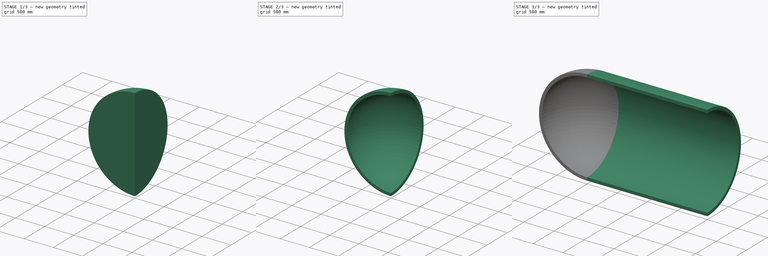
[diagram: build sequence overview — one tinted view per stage of 3, left to right]
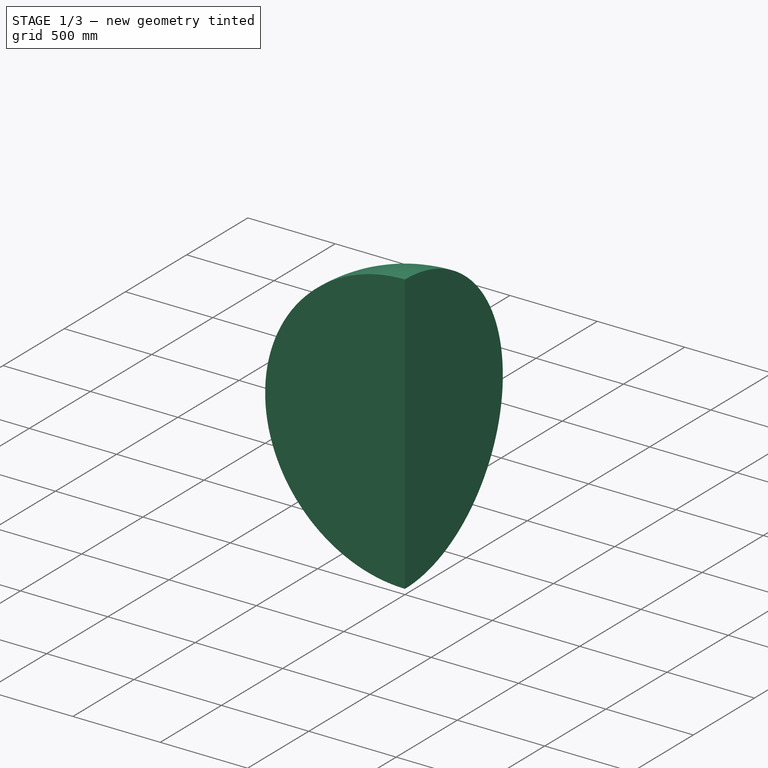
[diagram: stage 1 of 3 — iso view after this stage's code; geometry added in this stage tinted green]
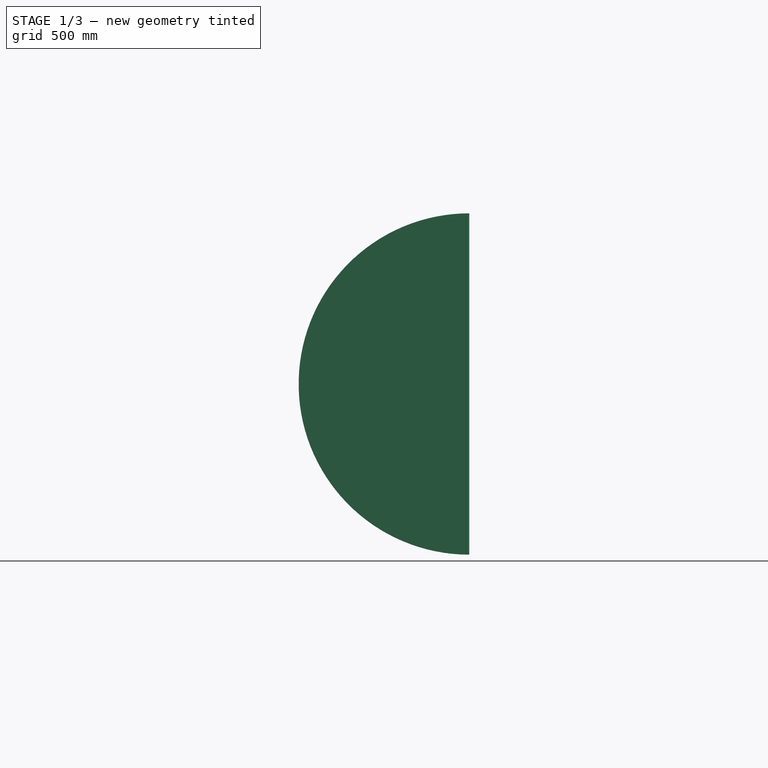
[diagram: stage 1 of 3 — front view after this stage's code; geometry added in this stage tinted green]
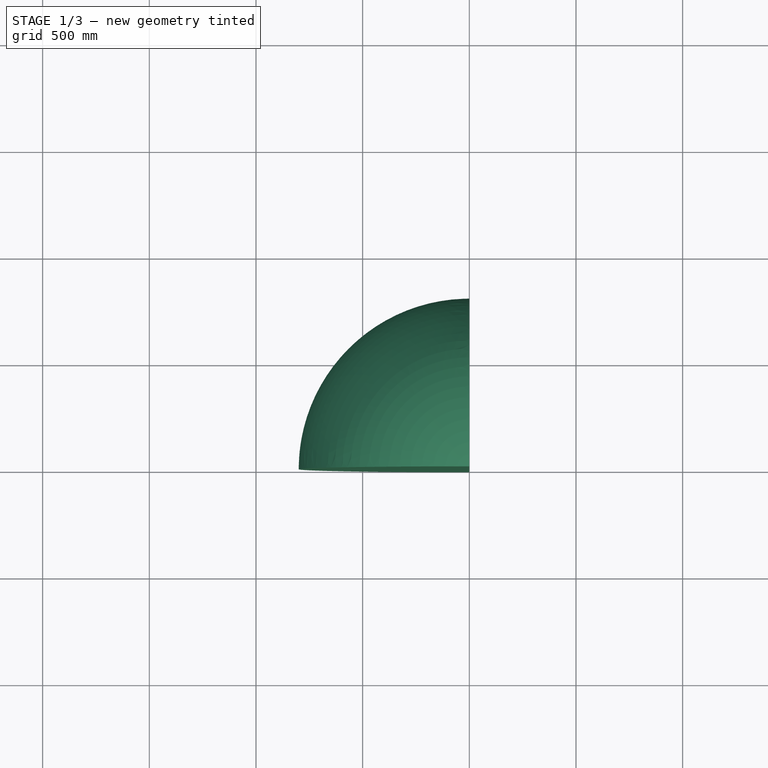
[diagram: stage 1 of 3 — top view after this stage's code; geometry added in this stage tinted green]
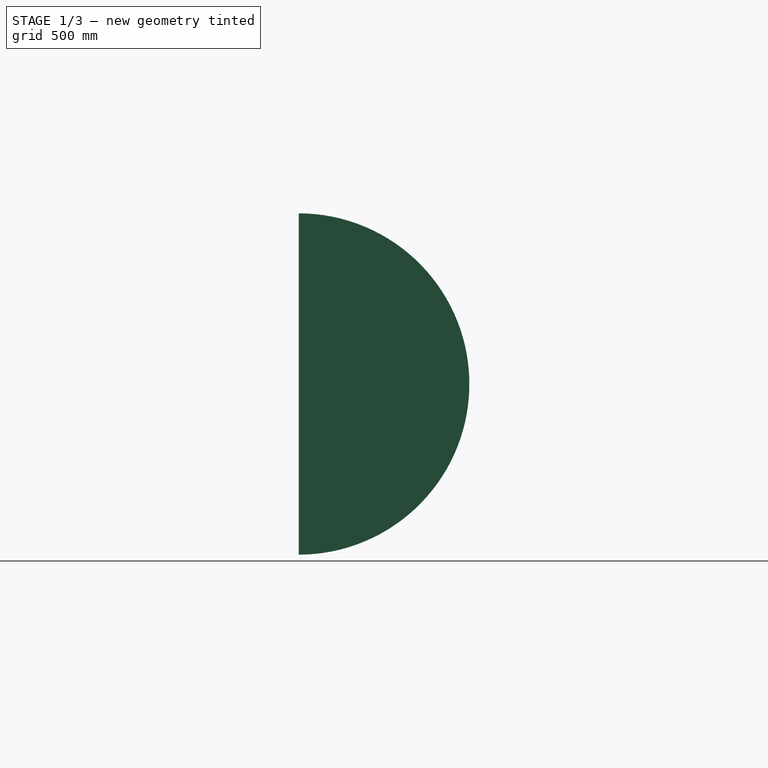
[diagram: stage 1 of 3 — right view after this stage's code; geometry added in this stage tinted green]
FCSTD DOCUMENT  (FreeCAD 0.16R6704 (Git))
Label: proj2-half-celindar
License: All rights reserved
LicenseURL: http://en.wikipedia.org/wiki/All_rights_reserved
objects: Sketcher::SketchObject×2, Part::Sphere×2, PartDesign::Pad×1, PartDesign::Pocket×1, Part::Cut×1
note: 9 computed .brp shape members not serialized (recipe doc carries the construction recipe); baked Part::Feature solids carry a one-line shape summary decoded from their .brp

FEATURE [Part::Sphere] Sphere
  Angle1 = -90
  Angle2 = 90
  Angle3 = 90
  Placement = pos=(0,0,0) rot=(0,0,1;1.5708rad)
  Radius = 800
FEATURE [Part::Sphere] Sphere001
  Angle1 = -90
  Angle2 = 90
  Angle3 = 90
  Placement = pos=(0,0,0) rot=(0,0,1;1.5708rad)
  Radius = 750
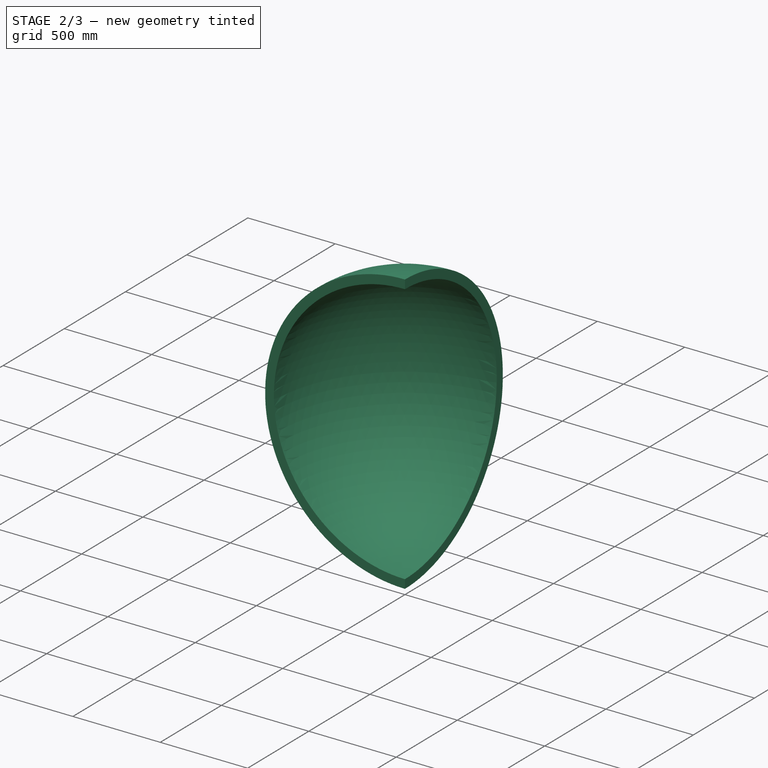
[diagram: stage 2 of 3 — iso view after this stage's code; geometry added in this stage tinted green]
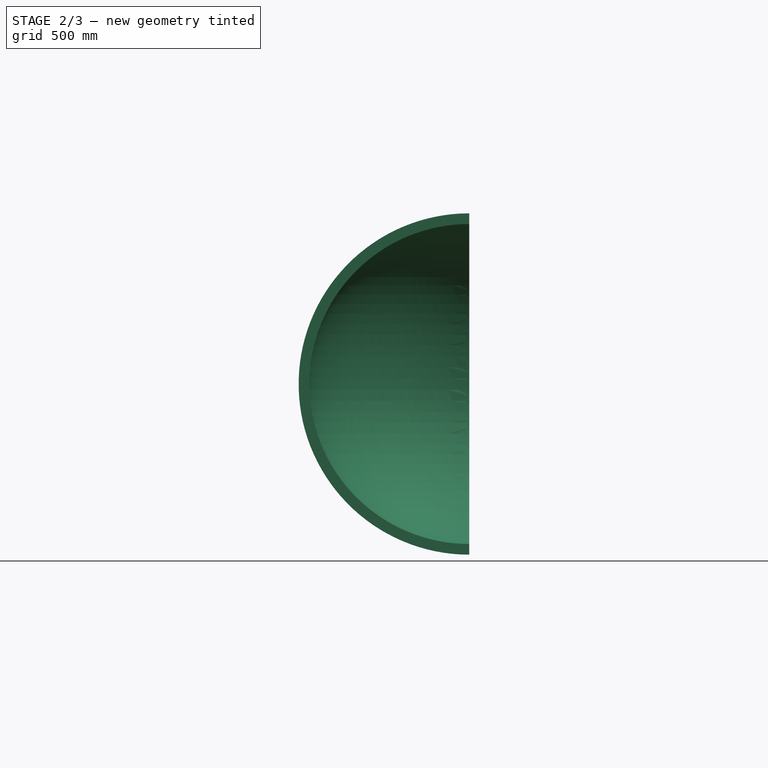
[diagram: stage 2 of 3 — front view after this stage's code; geometry added in this stage tinted green]
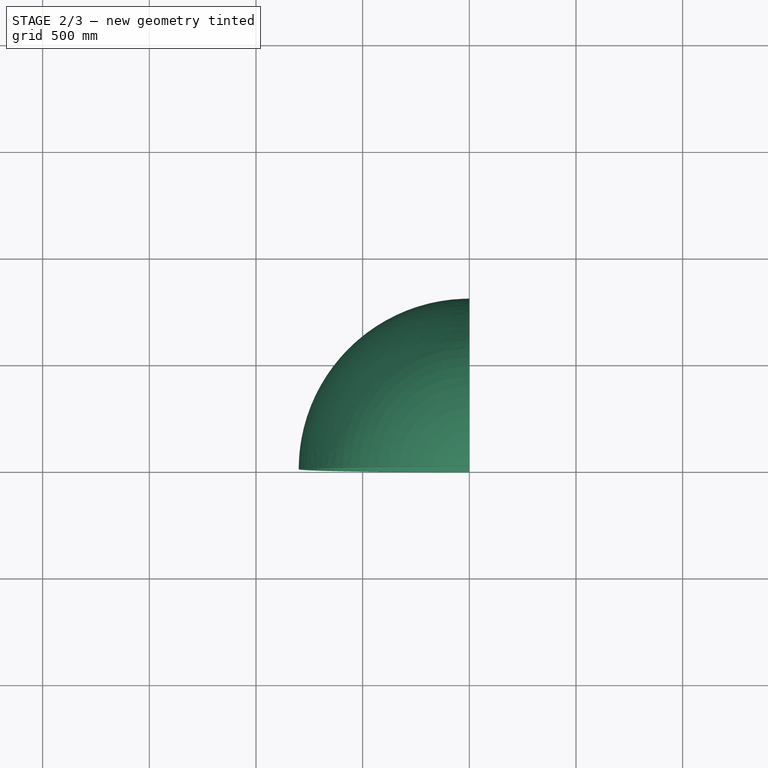
[diagram: stage 2 of 3 — top view after this stage's code; geometry added in this stage tinted green]
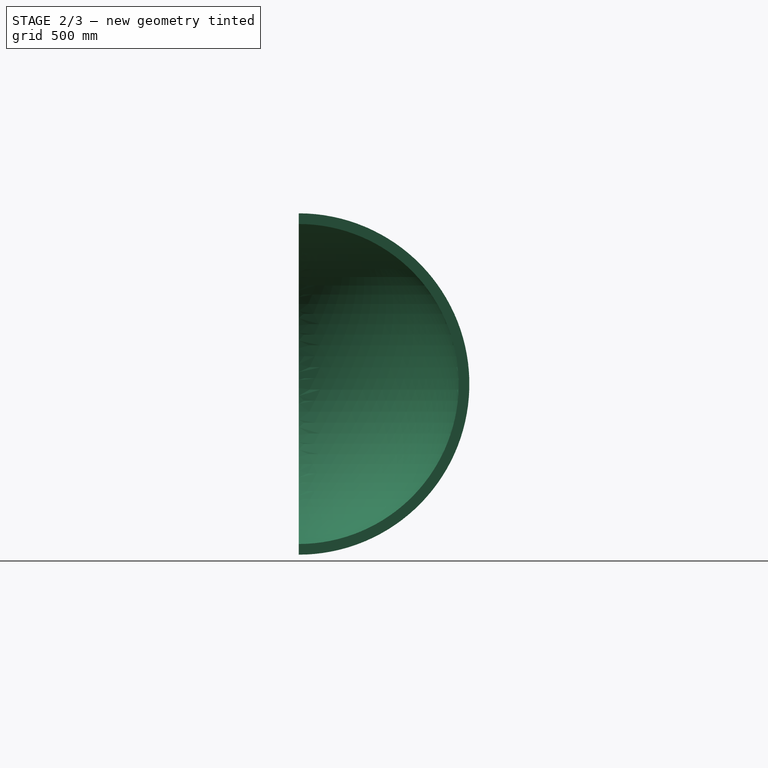
[diagram: stage 2 of 3 — right view after this stage's code; geometry added in this stage tinted green]
FEATURE [Part::Cut] Cut
  Base = -> Sphere
  Tool = -> Sphere001
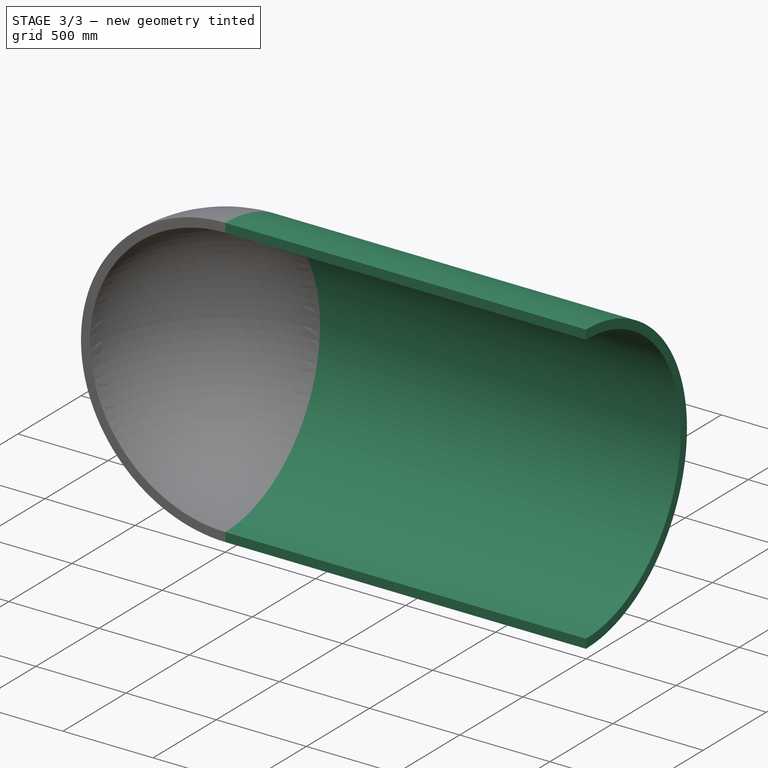
[diagram: stage 3 of 3 — iso view after this stage's code; geometry added in this stage tinted green]
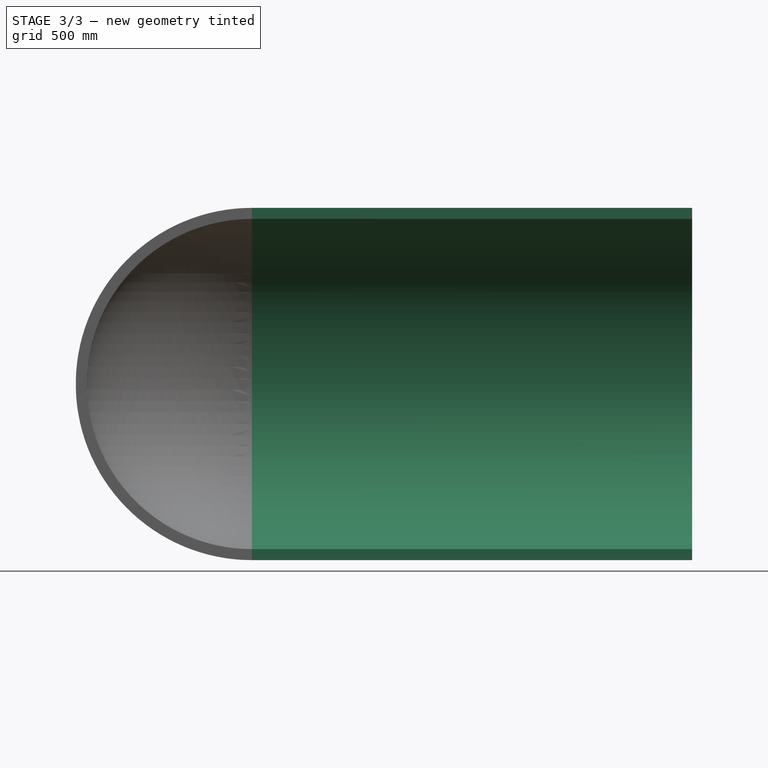
[diagram: stage 3 of 3 — front view after this stage's code; geometry added in this stage tinted green]
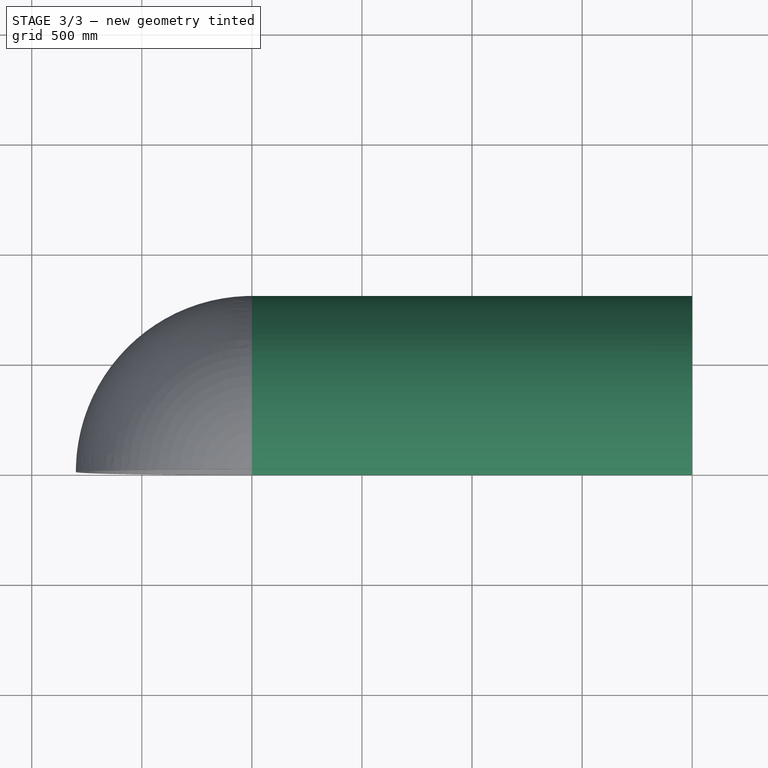
[diagram: stage 3 of 3 — top view after this stage's code; geometry added in this stage tinted green]
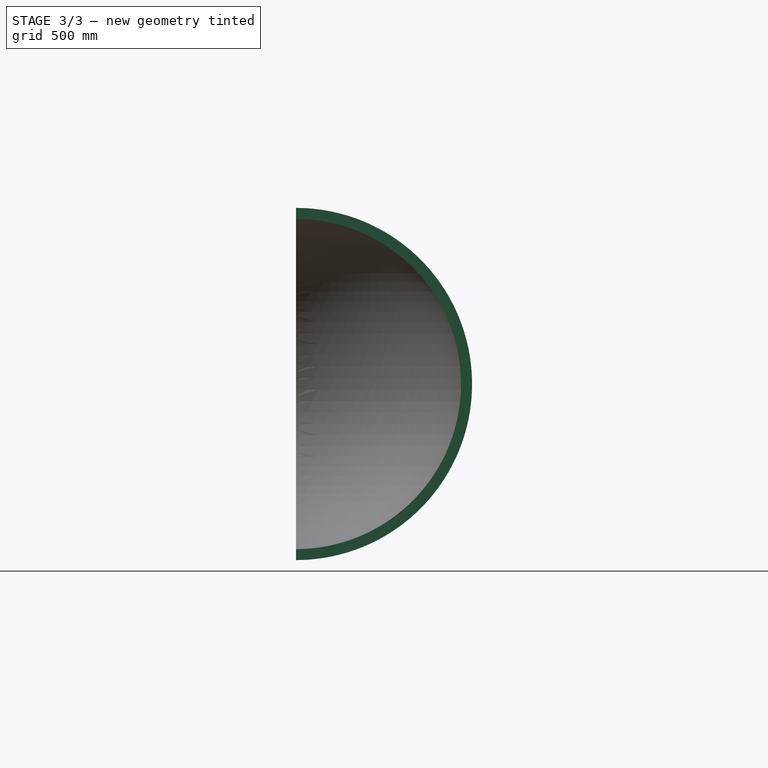
[diagram: stage 3 of 3 — right view after this stage's code; geometry added in this stage tinted green]
FEATURE [Sketcher::SketchObject] Sketch
  Placement = pos=(0,0,0) rot=(0.57735,0.57735,0.57735;2.0944rad)
  sketch-geometry (2):
    g0: Circle CenterX=0 CenterY=0 CenterZ=0 NormalX=0 NormalY=0 NormalZ=1 Radius=800
    g1: Circle CenterX=0 CenterY=0 CenterZ=0 NormalX=0 NormalY=0 NormalZ=1 Radius=750
  constraints (4):
    c: Coincident(g0,g-1)
    c: Radius(g0) = 800
    c: Coincident(g1,g-1)
    c: Radius(g1) = 750
FEATURE [PartDesign::Pad] Pad
  Length = 2000
  Length2 = 100
  Placement = pos=(0,0,0) rot=(0.57735,0.57735,0.57735;2.0944rad)
  Sketch = -> Sketch
  Type = 0
FEATURE [Sketcher::SketchObject] Sketch001
  ExternalGeometry = -> [Pad]
  Placement = pos=(2000,0,0) rot=(0.57735,0.57735,0.57735;2.0944rad)
  Support = -> Pad [Face4]
  sketch-geometry (5):
    g0: LineSegment StartX=0 StartY=800 StartZ=0 EndX=0 EndY=-800 EndZ=0
    g1: LineSegment StartX=-1000 StartY=800 StartZ=0 EndX=0 EndY=800 EndZ=0
    g2: LineSegment StartX=0 StartY=800 StartZ=0 EndX=0 EndY=-800 EndZ=0
    g3: LineSegment StartX=0 StartY=-800 StartZ=0 EndX=-1000 EndY=-800 EndZ=0
    g4: LineSegment StartX=-1000 StartY=-800 StartZ=0 EndX=-1000 EndY=800 EndZ=0
  constraints (13):
    c: Vertical(g0)
    c: Symmetric(g0,g0,g-1)
    c: DistanceY(g0,g0) = 1600
    c: Coincident(g1,g2)
    c: Coincident(g2,g3)
    c: Coincident(g3,g4)
    c: Coincident(g4,g1)
    c: Horizontal(g1)
    c: Horizontal(g3)
    c: Vertical(g2)
    c: Vertical(g4)
    c: Coincident(g0,g1)
    c: Coincident(g2,g0)
FEATURE [PartDesign::Pocket] Pocket
  Length = 5
  Placement = pos=(0,0,0) rot=(0.57735,0.57735,0.57735;2.0944rad)
  Sketch = -> Sketch001
  Type = 1
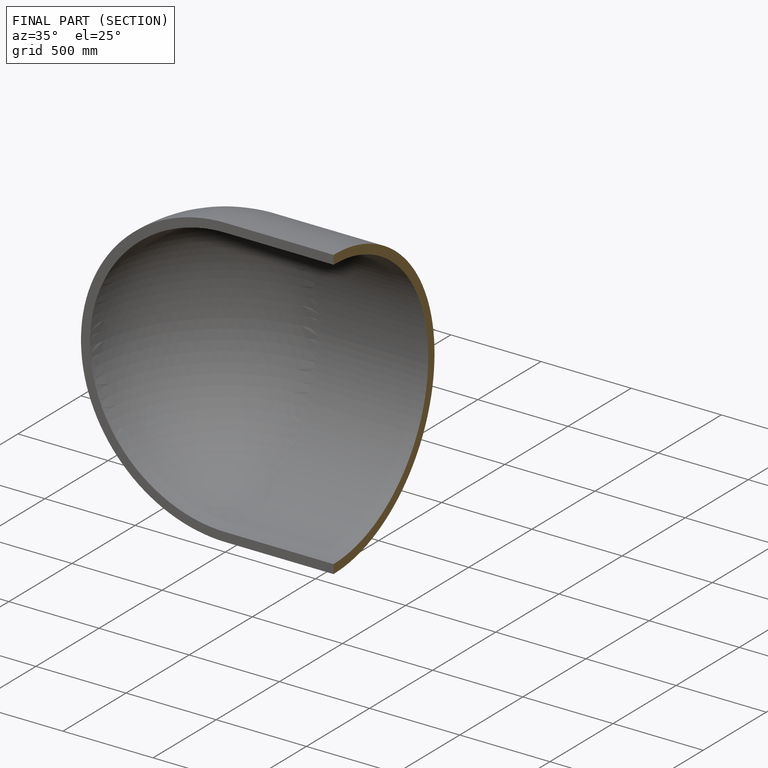
[diagram: finished part — half-section view (interior)]
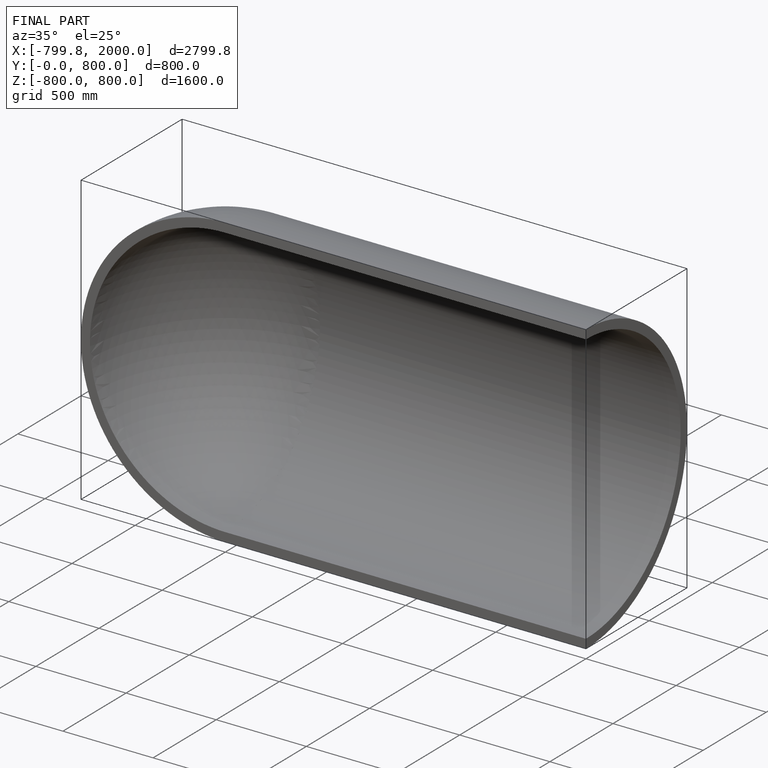
[diagram: finished part — iso view with bounding-box wireframe]
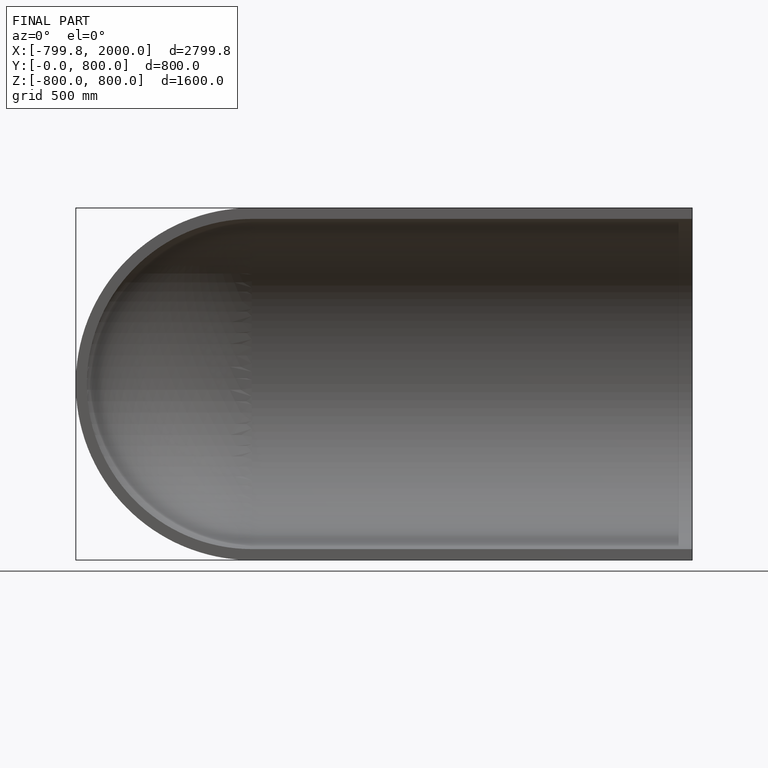
[diagram: finished part — front view with bounding-box wireframe]
